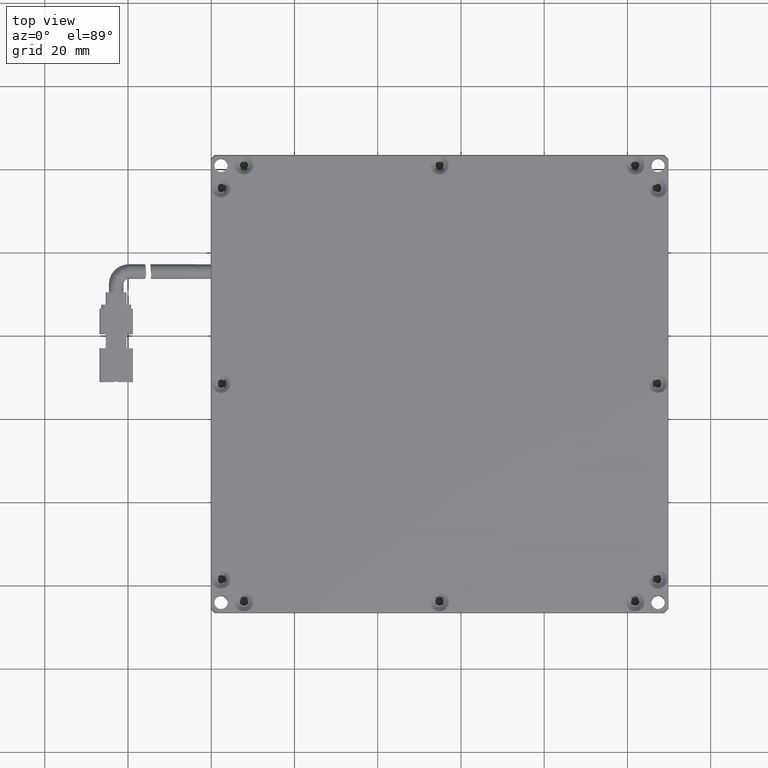
[diagram: clean part render]
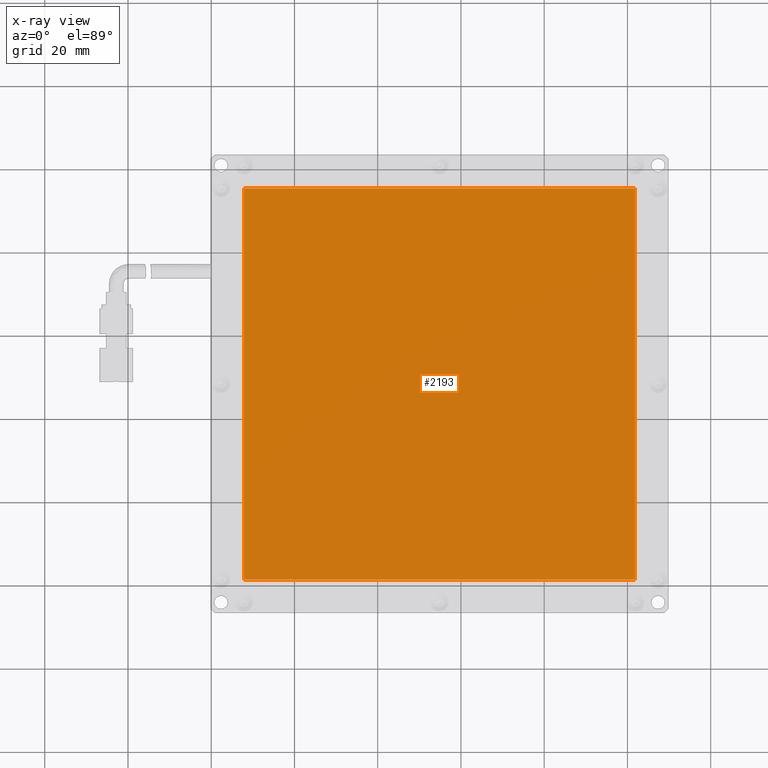
[diagram: x-ray — body ghosted, one internal face saturated and labeled with its STEP entity id]
A machine part, top view, then the same camera in x-ray: the body is ghosted and one INTERNAL B-rep face — a face not visible from any outside direction — is saturated and labeled: STEP entity #2193.
In plain terms, the highlighted planar face has unit normal (0, 0, -1).
Its self-contained STEP definition (entity closure, byte-faithful):
#672 = CARTESIAN_POINT ( 'NONE',  ( 41.85490645284000500, 8.400152730050008300, -2.500000000024000400 ) ) ;
#742 = DIRECTION ( 'NONE',  ( 0.0000000000000000000, 0.0000000000000000000, -1.000000000000000000 ) ) ;
#887 = EDGE_CURVE ( 'NONE', #4107, #11067, #11383, .T. ) ;
#1245 = EDGE_CURVE ( 'NONE', #11067, #1668, #10749, .T. ) ;
#1668 = VERTEX_POINT ( 'NONE', #11683 ) ;
#1891 = FACE_OUTER_BOUND ( 'NONE', #6072, .T. ) ;
#1935 = CARTESIAN_POINT ( 'NONE',  ( 41.85490645284000500, -38.59984726994998300, -2.500000000024000400 ) ) ;
#2193 = ADVANCED_FACE ( 'NONE', ( #1891 ), #15859, .F. ) ;
#3251 = VERTEX_POINT ( 'NONE', #16491 ) ;
#3323 = AXIS2_PLACEMENT_3D ( 'NONE', #9091, #742, #10457 ) ;
#4107 = VERTEX_POINT ( 'NONE', #8514 ) ;
#4904 = DIRECTION ( 'NONE',  ( -0.0000000000000000000, -1.000000000000000000, -0.0000000000000000000 ) ) ;
#5373 = EDGE_CURVE ( 'NONE', #3251, #1668, #15463, .T. ) ;
#5424 = DIRECTION ( 'NONE',  ( -0.0000000000000000000, -1.000000000000000000, -0.0000000000000000000 ) ) ;
#6072 = EDGE_LOOP ( 'NONE', ( #12814, #9732, #17283, #16710 ) ) ;
#6661 = VECTOR ( 'NONE', #10101, 1000.000000000000000 ) ;
#8514 = CARTESIAN_POINT ( 'NONE',  ( 41.85490645284000500, 55.40015273004998900, -2.500000000024000400 ) ) ;
#9091 = CARTESIAN_POINT ( 'NONE',  ( 43.73490645284000800, -40.47984726994997800, -2.500000000023999900 ) ) ;
#9732 = ORIENTED_EDGE ( 'NONE', *, *, #11002, .T. ) ;
#10101 = DIRECTION ( 'NONE',  ( -1.000000000000000000, 0.0000000000000000000, 0.0000000000000000000 ) ) ;
#10457 = DIRECTION ( 'NONE',  ( -1.000000000000000000, 0.0000000000000000000, 0.0000000000000000000 ) ) ;
#10749 = LINE ( 'NONE', #15634, #6661 ) ;
#10982 = VECTOR ( 'NONE', #4904, 1000.000000000000000 ) ;
#11002 = EDGE_CURVE ( 'NONE', #4107, #3251, #13123, .T. ) ;
#11067 = VERTEX_POINT ( 'NONE', #1935 ) ;
#11368 = VECTOR ( 'NONE', #5424, 1000.000000000000000 ) ;
#11372 = DIRECTION ( 'NONE',  ( -1.000000000000000000, -0.0000000000000000000, -0.0000000000000000000 ) ) ;
#11383 = LINE ( 'NONE', #672, #10982 ) ;
#11683 = CARTESIAN_POINT ( 'NONE',  ( -52.14509354716000200, -38.59984726994999000, -2.500000000024000400 ) ) ;
#12814 = ORIENTED_EDGE ( 'NONE', *, *, #887, .F. ) ;
#13123 = LINE ( 'NONE', #14078, #16373 ) ;
#14078 = CARTESIAN_POINT ( 'NONE',  ( -5.145093547160001000, 55.40015273004998200, -2.500000000024000400 ) ) ;
#15011 = CARTESIAN_POINT ( 'NONE',  ( -52.14509354716000200, 8.400152730050004700, -2.500000000024000400 ) ) ;
#15463 = LINE ( 'NONE', #15011, #11368 ) ;
#15634 = CARTESIAN_POINT ( 'NONE',  ( -5.145093547160001000, -38.59984726994997600, -2.500000000024000400 ) ) ;
#15859 = PLANE ( 'NONE',  #3323 ) ;
#16373 = VECTOR ( 'NONE', #11372, 1000.000000000000000 ) ;
#16491 = CARTESIAN_POINT ( 'NONE',  ( -52.14509354716000900, 55.40015273004998900, -2.500000000024000400 ) ) ;
#16710 = ORIENTED_EDGE ( 'NONE', *, *, #1245, .F. ) ;
#17283 = ORIENTED_EDGE ( 'NONE', *, *, #5373, .T. ) ;